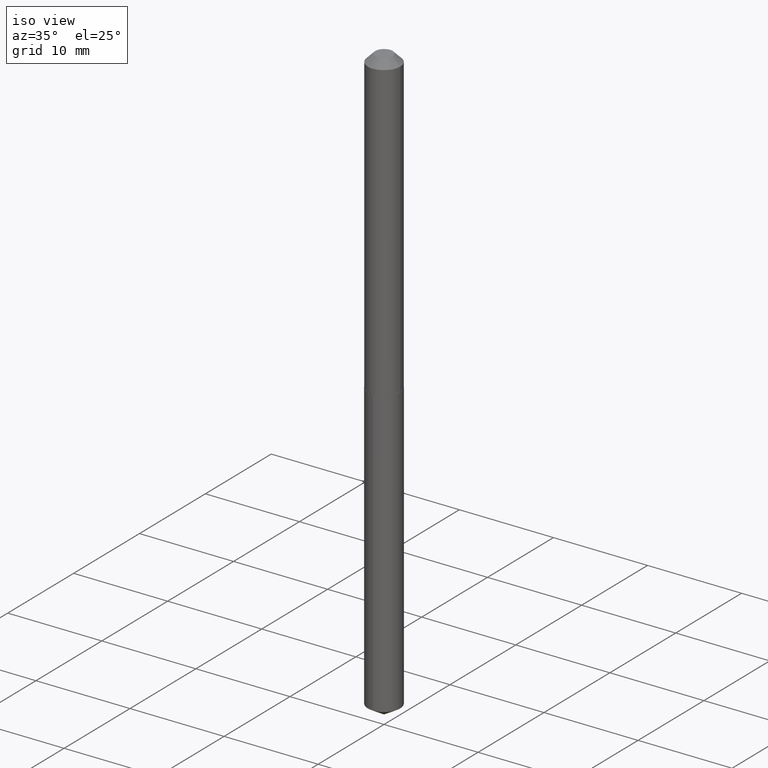
[diagram: clean part render]
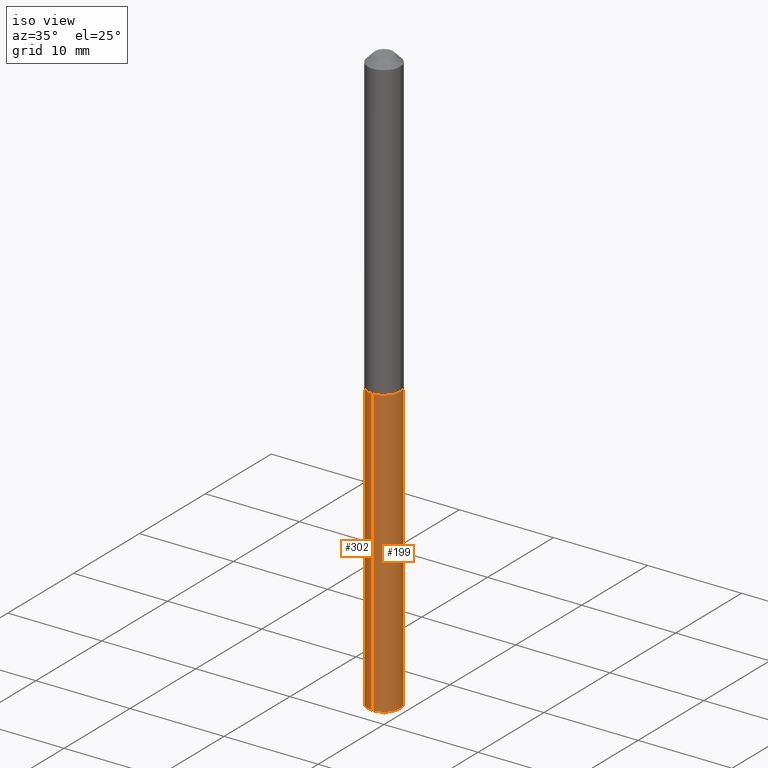
[diagram: same view with one multi-face feature highlighted, each face labeled with its STEP entity id]
A machine part, iso view. The highlighted faces form ONE feature: a constant-radius fillet chain: 2 tangent blend faces with common blend radius 1.7272 mm. The faces share edges in the B-rep.
Their STEP definitions:
[1] entity #302 (Cylinder):
#13 = CARTESIAN_POINT ( 'NONE',  ( -4.748414620826353629E-16, -0.06800000000000441802, -1.261000000000000121 ) ) ;
#27 = DIRECTION ( 'NONE',  ( -2.445462976299597791E-29, 3.491489687571053805E-15, 1.000000000000000000 ) ) ;
#45 = CARTESIAN_POINT ( 'NONE',  ( 6.013746789187770522E-29, -8.586056582641587078E-15, -2.459141477906126028 ) ) ;
#49 = CARTESIAN_POINT ( 'NONE',  ( -4.748414620826059778E-16, -0.06800000000000858136, -2.459141477906126028 ) ) ;
#56 = DIRECTION ( 'NONE',  ( -2.445462976299598072E-29, 3.491489687571053805E-15, 1.000000000000000000 ) ) ;
#57 = LINE ( 'NONE', #268, #248 ) ;
#63 = DIRECTION ( 'NONE',  ( -6.982962677686265922E-15, -1.000000000000000000, 4.017423520094504617E-15 ) ) ;
#69 = EDGE_CURVE ( 'NONE', #213, #154, #71, .T. ) ;
#71 = CIRCLE ( 'NONE', #105, 0.06800000000000000488 ) ;
#96 = ORIENTED_EDGE ( 'NONE', *, *, #69, .F. ) ;
#103 = DIRECTION ( 'NONE',  ( -2.445462976299597791E-29, 3.491489687571053805E-15, 1.000000000000000000 ) ) ;
#105 = AXIS2_PLACEMENT_3D ( 'NONE', #297, #27, #63 ) ;
#107 = CYLINDRICAL_SURFACE ( 'NONE', #235, 0.06800000000000000488 ) ;
#120 = VECTOR ( 'NONE', #289, 39.37007874015748143 ) ;
#154 = VERTEX_POINT ( 'NONE', #330 ) ;
#155 = EDGE_CURVE ( 'NONE', #339, #213, #57, .T. ) ;
#158 = LINE ( 'NONE', #13, #120 ) ;
#188 = AXIS2_PLACEMENT_3D ( 'NONE', #45, #252, #255 ) ;
#189 = FACE_OUTER_BOUND ( 'NONE', #306, .T. ) ;
#213 = VERTEX_POINT ( 'NONE', #303 ) ;
#221 = ORIENTED_EDGE ( 'NONE', *, *, #291, .T. ) ;
#235 = AXIS2_PLACEMENT_3D ( 'NONE', #317, #103, #349 ) ;
#248 = VECTOR ( 'NONE', #56, 39.37007874015748143 ) ;
#252 = DIRECTION ( 'NONE',  ( -2.445462976299597791E-29, 3.491489687571053805E-15, 1.000000000000000000 ) ) ;
#255 = DIRECTION ( 'NONE',  ( -6.982962677686265922E-15, -1.000000000000000000, 4.017423520094504617E-15 ) ) ;
#268 = CARTESIAN_POINT ( 'NONE',  ( 4.831690603168989267E-16, 0.06799999999999560563, -1.261000000000000565 ) ) ;
#277 = ORIENTED_EDGE ( 'NONE', *, *, #341, .T. ) ;
#278 = ORIENTED_EDGE ( 'NONE', *, *, #155, .F. ) ;
#289 = DIRECTION ( 'NONE',  ( -2.445462976299598072E-29, 3.491489687571053805E-15, 1.000000000000000000 ) ) ;
#291 = EDGE_CURVE ( 'NONE', #339, #373, #322, .T. ) ;
#297 = CARTESIAN_POINT ( 'NONE',  ( 3.083736164599457894E-29, -4.402757968281207128E-15, -1.261000000000000343 ) ) ;
#302 = ADVANCED_FACE ( 'NONE', ( #189 ), #107, .T. ) ;
#303 = CARTESIAN_POINT ( 'NONE',  ( 4.831690603169285090E-16, 0.06799999999999560563, -1.261000000000000565 ) ) ;
#306 = EDGE_LOOP ( 'NONE', ( #278, #221, #277, #96 ) ) ;
#314 = CARTESIAN_POINT ( 'NONE',  ( 4.831690603169281145E-16, 0.06799999999999140066, -2.459141477906126472 ) ) ;
#317 = CARTESIAN_POINT ( 'NONE',  ( 3.083736164599457894E-29, -4.402757968281207128E-15, -1.261000000000000343 ) ) ;
#322 = CIRCLE ( 'NONE', #188, 0.06800000000000000488 ) ;
#330 = CARTESIAN_POINT ( 'NONE',  ( -4.748414620826353629E-16, -0.06800000000000441802, -1.261000000000000121 ) ) ;
#339 = VERTEX_POINT ( 'NONE', #314 ) ;
#341 = EDGE_CURVE ( 'NONE', #373, #154, #158, .T. ) ;
#349 = DIRECTION ( 'NONE',  ( -6.982962677686265922E-15, -1.000000000000000000, 4.017423520094504617E-15 ) ) ;
#373 = VERTEX_POINT ( 'NONE', #49 ) ;
[2] entity #199 (Cylinder):
#3 = DIRECTION ( 'NONE',  ( -2.445462976299597791E-29, 3.491489687571053805E-15, 1.000000000000000000 ) ) ;
#11 = ORIENTED_EDGE ( 'NONE', *, *, #155, .T. ) ;
#13 = CARTESIAN_POINT ( 'NONE',  ( -4.748414620826353629E-16, -0.06800000000000441802, -1.261000000000000121 ) ) ;
#34 = ORIENTED_EDGE ( 'NONE', *, *, #65, .F. ) ;
#38 = ORIENTED_EDGE ( 'NONE', *, *, #341, .F. ) ;
#44 = AXIS2_PLACEMENT_3D ( 'NONE', #360, #3, #326 ) ;
#49 = CARTESIAN_POINT ( 'NONE',  ( -4.748414620826059778E-16, -0.06800000000000858136, -2.459141477906126028 ) ) ;
#56 = DIRECTION ( 'NONE',  ( -2.445462976299598072E-29, 3.491489687571053805E-15, 1.000000000000000000 ) ) ;
#57 = LINE ( 'NONE', #268, #248 ) ;
#65 = EDGE_CURVE ( 'NONE', #154, #213, #344, .T. ) ;
#75 = DIRECTION ( 'NONE',  ( -6.982962677686265922E-15, -1.000000000000000000, 4.017423520094504617E-15 ) ) ;
#81 = DIRECTION ( 'NONE',  ( -2.445462976299597791E-29, 3.491489687571053805E-15, 1.000000000000000000 ) ) ;
#106 = AXIS2_PLACEMENT_3D ( 'NONE', #124, #135, #75 ) ;
#120 = VECTOR ( 'NONE', #289, 39.37007874015748143 ) ;
#124 = CARTESIAN_POINT ( 'NONE',  ( 6.013746789187770522E-29, -8.586056582641587078E-15, -2.459141477906126028 ) ) ;
#126 = AXIS2_PLACEMENT_3D ( 'NONE', #356, #81, #233 ) ;
#135 = DIRECTION ( 'NONE',  ( -2.445462976299597791E-29, 3.491489687571053805E-15, 1.000000000000000000 ) ) ;
#142 = CYLINDRICAL_SURFACE ( 'NONE', #44, 0.06800000000000000488 ) ;
#154 = VERTEX_POINT ( 'NONE', #330 ) ;
#155 = EDGE_CURVE ( 'NONE', #339, #213, #57, .T. ) ;
#158 = LINE ( 'NONE', #13, #120 ) ;
#179 = CIRCLE ( 'NONE', #106, 0.06800000000000000488 ) ;
#199 = ADVANCED_FACE ( 'NONE', ( #364 ), #142, .T. ) ;
#213 = VERTEX_POINT ( 'NONE', #303 ) ;
#233 = DIRECTION ( 'NONE',  ( -6.982962677686265922E-15, -1.000000000000000000, 4.017423520094504617E-15 ) ) ;
#237 = EDGE_CURVE ( 'NONE', #373, #339, #179, .T. ) ;
#248 = VECTOR ( 'NONE', #56, 39.37007874015748143 ) ;
#268 = CARTESIAN_POINT ( 'NONE',  ( 4.831690603168989267E-16, 0.06799999999999560563, -1.261000000000000565 ) ) ;
#276 = ORIENTED_EDGE ( 'NONE', *, *, #237, .T. ) ;
#289 = DIRECTION ( 'NONE',  ( -2.445462976299598072E-29, 3.491489687571053805E-15, 1.000000000000000000 ) ) ;
#303 = CARTESIAN_POINT ( 'NONE',  ( 4.831690603169285090E-16, 0.06799999999999560563, -1.261000000000000565 ) ) ;
#314 = CARTESIAN_POINT ( 'NONE',  ( 4.831690603169281145E-16, 0.06799999999999140066, -2.459141477906126472 ) ) ;
#326 = DIRECTION ( 'NONE',  ( -6.982962677686265922E-15, -1.000000000000000000, 4.017423520094504617E-15 ) ) ;
#330 = CARTESIAN_POINT ( 'NONE',  ( -4.748414620826353629E-16, -0.06800000000000441802, -1.261000000000000121 ) ) ;
#339 = VERTEX_POINT ( 'NONE', #314 ) ;
#341 = EDGE_CURVE ( 'NONE', #373, #154, #158, .T. ) ;
#344 = CIRCLE ( 'NONE', #126, 0.06800000000000000488 ) ;
#356 = CARTESIAN_POINT ( 'NONE',  ( 3.083736164599457894E-29, -4.402757968281207128E-15, -1.261000000000000343 ) ) ;
#360 = CARTESIAN_POINT ( 'NONE',  ( 3.083736164599457894E-29, -4.402757968281207128E-15, -1.261000000000000343 ) ) ;
#364 = FACE_OUTER_BOUND ( 'NONE', #371, .T. ) ;
#371 = EDGE_LOOP ( 'NONE', ( #276, #11, #34, #38 ) ) ;
#373 = VERTEX_POINT ( 'NONE', #49 ) ;